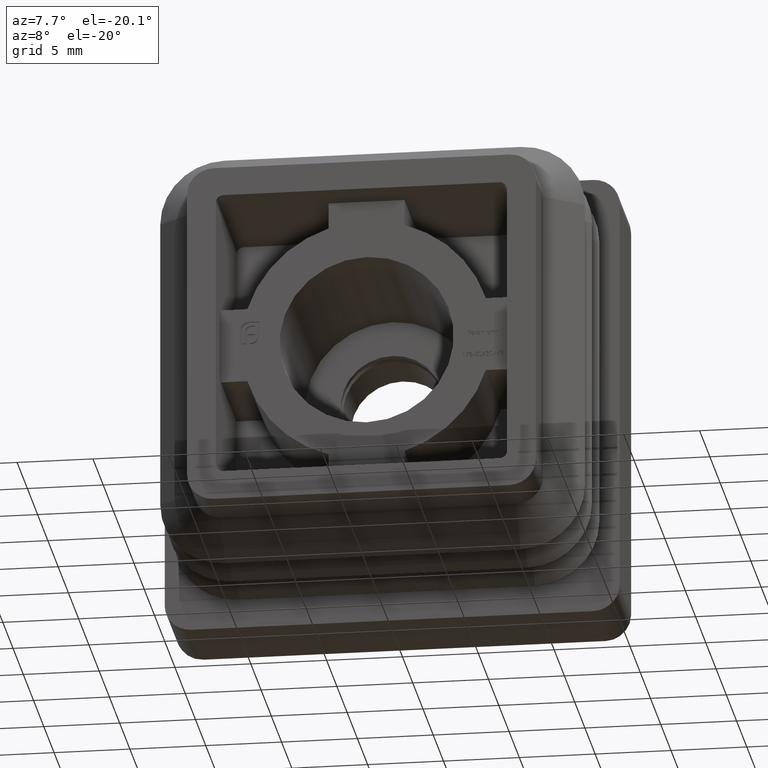
[diagram: clean part render]
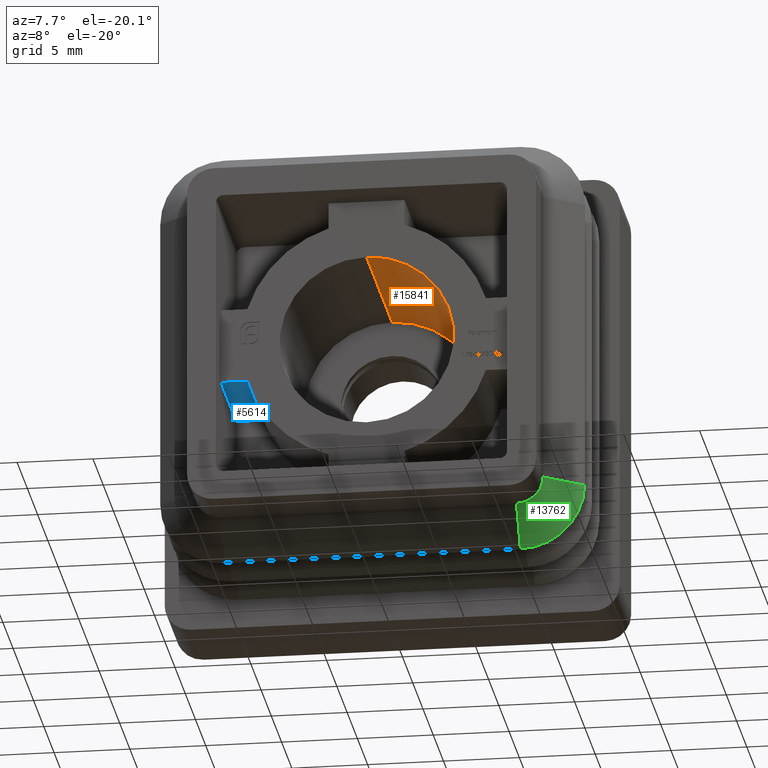
[diagram: same view with three faces highlighted in distinct colors, each labeled with its STEP entity id]
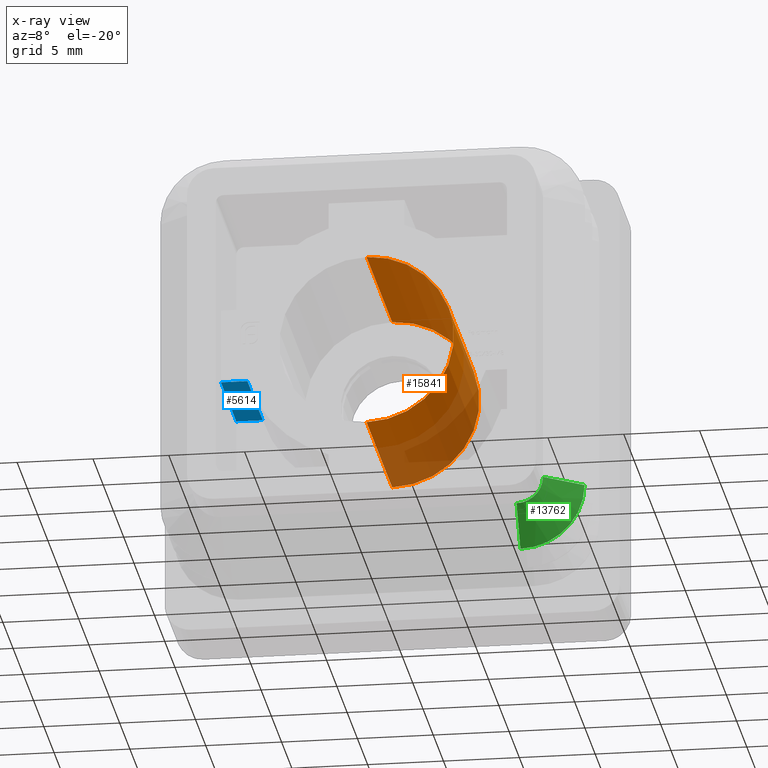
[diagram: x-ray of the same camera — body ghosted, the three highlighted faces saturated]
A machine part, auxiliary view with three faces highlighted in distinct colors.
The next image is the same camera in x-ray (body ghosted, the three faces saturated) — at least one of them is partly hidden behind the body in this view.
Their STEP definitions:

[orange] entity #15841 — the highlighted cylindrical surface (partial cylindrical patch) has radius 5.75 mm, axis along (-0, -1, -0).
#100 = FACE_OUTER_BOUND ( 'NONE', #12128, .T. ) ;
#1231 = CARTESIAN_POINT ( 'NONE',  ( 0.000000000000000000, 0.000000000000000000, 0.000000000000000000 ) ) ;
#3198 = LINE ( 'NONE', #19271, #20462 ) ;
#3591 = ORIENTED_EDGE ( 'NONE', *, *, #21528, .F. ) ;
#4337 = VERTEX_POINT ( 'NONE', #13723 ) ;
#4344 = CARTESIAN_POINT ( 'NONE',  ( 0.000000000000000000, 0.000000000000000000, -5.750000000000000000 ) ) ;
#4920 = VERTEX_POINT ( 'NONE', #4344 ) ;
#5213 = CARTESIAN_POINT ( 'NONE',  ( 0.000000000000000000, -12.49999999999999645, -5.750000000000000000 ) ) ;
#5599 = CARTESIAN_POINT ( 'NONE',  ( 0.000000000000000000, 0.000000000000000000, -5.750000000000000000 ) ) ;
#6272 = AXIS2_PLACEMENT_3D ( 'NONE', #22048, #16597, #7975 ) ;
#6633 = CARTESIAN_POINT ( 'NONE',  ( 0.000000000000000000, -12.49999999999999645, 0.000000000000000000 ) ) ;
#7251 = CIRCLE ( 'NONE', #6272, 5.750000000000000000 ) ;
#7975 = DIRECTION ( 'NONE',  ( 0.000000000000000000, 0.000000000000000000, -1.000000000000000000 ) ) ;
#8632 = VECTOR ( 'NONE', #8986, 1000.000000000000000 ) ;
#8679 = AXIS2_PLACEMENT_3D ( 'NONE', #1231, #11684, #9805 ) ;
#8716 = CIRCLE ( 'NONE', #9839, 5.750000000000000000 ) ;
#8986 = DIRECTION ( 'NONE',  ( -0.000000000000000000, -1.000000000000000000, -0.000000000000000000 ) ) ;
#9184 = VERTEX_POINT ( 'NONE', #5213 ) ;
#9805 = DIRECTION ( 'NONE',  ( 0.000000000000000000, 0.000000000000000000, -1.000000000000000000 ) ) ;
#9839 = AXIS2_PLACEMENT_3D ( 'NONE', #6633, #13833, #15481 ) ;
#10463 = DIRECTION ( 'NONE',  ( -0.000000000000000000, -1.000000000000000000, -0.000000000000000000 ) ) ;
#11684 = DIRECTION ( 'NONE',  ( -0.000000000000000000, -1.000000000000000000, -0.000000000000000000 ) ) ;
#11816 = ORIENTED_EDGE ( 'NONE', *, *, #19302, .F. ) ;
#12128 = EDGE_LOOP ( 'NONE', ( #11816, #3591, #21676, #13289 ) ) ;
#12980 = LINE ( 'NONE', #5599, #8632 ) ;
#13289 = ORIENTED_EDGE ( 'NONE', *, *, #15076, .T. ) ;
#13723 = CARTESIAN_POINT ( 'NONE',  ( 7.041719095097280880E-16, 0.000000000000000000, 5.750000000000000000 ) ) ;
#13833 = DIRECTION ( 'NONE',  ( 0.000000000000000000, -1.000000000000000000, 0.000000000000000000 ) ) ;
#15076 = EDGE_CURVE ( 'NONE', #9184, #22287, #8716, .T. ) ;
#15481 = DIRECTION ( 'NONE',  ( 0.000000000000000000, 0.000000000000000000, -1.000000000000000000 ) ) ;
#15841 = ADVANCED_FACE ( 'NONE', ( #100 ), #19771, .F. ) ;
#16597 = DIRECTION ( 'NONE',  ( 0.000000000000000000, -1.000000000000000000, 0.000000000000000000 ) ) ;
#17773 = CARTESIAN_POINT ( 'NONE',  ( 7.041719095097280880E-16, -12.49999999999999645, 5.750000000000000000 ) ) ;
#18392 = EDGE_CURVE ( 'NONE', #4920, #9184, #12980, .T. ) ;
#19271 = CARTESIAN_POINT ( 'NONE',  ( 7.041719095097280880E-16, 0.000000000000000000, 5.750000000000000000 ) ) ;
#19302 = EDGE_CURVE ( 'NONE', #4337, #22287, #3198, .T. ) ;
#19771 = CYLINDRICAL_SURFACE ( 'NONE', #8679, 5.750000000000000000 ) ;
#20462 = VECTOR ( 'NONE', #10463, 1000.000000000000000 ) ;
#21528 = EDGE_CURVE ( 'NONE', #4920, #4337, #7251, .T. ) ;
#21676 = ORIENTED_EDGE ( 'NONE', *, *, #18392, .T. ) ;
#22048 = CARTESIAN_POINT ( 'NONE',  ( 0.000000000000000000, 0.000000000000000000, 0.000000000000000000 ) ) ;
#22287 = VERTEX_POINT ( 'NONE', #17773 ) ;

[blue] entity #5614 — the highlighted planar face has unit normal (-0, 0, 1).
#327 = ORIENTED_EDGE ( 'NONE', *, *, #22219, .F. ) ;
#602 = VECTOR ( 'NONE', #20160, 1000.000000000000000 ) ;
#737 = EDGE_LOOP ( 'NONE', ( #327, #20872, #9946, #15612 ) ) ;
#1871 = EDGE_CURVE ( 'NONE', #10341, #20002, #21324, .T. ) ;
#2508 = VECTOR ( 'NONE', #10088, 1000.000000000000000 ) ;
#4631 = CARTESIAN_POINT ( 'NONE',  ( -7.862092596758194496, -4.999999999999999112, -2.499999999999999112 ) ) ;
#5179 = PLANE ( 'NONE',  #20736 ) ;
#5307 = VERTEX_POINT ( 'NONE', #9624 ) ;
#5614 = ADVANCED_FACE ( 'NONE', ( #14826 ), #5179, .F. ) ;
#7071 = LINE ( 'NONE', #18368, #17897 ) ;
#8706 = CARTESIAN_POINT ( 'NONE',  ( -9.600000000000003197, -42.15290039756342111, -2.500000000000000000 ) ) ;
#9624 = CARTESIAN_POINT ( 'NONE',  ( -7.862092596758194496, -12.49999999999999645, -2.499999999999999112 ) ) ;
#9946 = ORIENTED_EDGE ( 'NONE', *, *, #15871, .T. ) ;
#10088 = DIRECTION ( 'NONE',  ( 1.000000000000000000, 0.000000000000000000, 0.000000000000000000 ) ) ;
#10341 = VERTEX_POINT ( 'NONE', #22198 ) ;
#11273 = CARTESIAN_POINT ( 'NONE',  ( -9.600000000000003197, -42.15290039756342111, -2.500000000000000000 ) ) ;
#12494 = CARTESIAN_POINT ( 'NONE',  ( -9.600000000000003197, -12.49999999999999645, -2.500000000000000000 ) ) ;
#13186 = VECTOR ( 'NONE', #19175, 1000.000000000000000 ) ;
#13879 = LINE ( 'NONE', #15261, #2508 ) ;
#14826 = FACE_OUTER_BOUND ( 'NONE', #737, .T. ) ;
#15261 = CARTESIAN_POINT ( 'NONE',  ( -9.600000000000003197, -4.999999999999999112, -2.500000000000000000 ) ) ;
#15265 = CARTESIAN_POINT ( 'NONE',  ( -9.600000000000003197, -4.999999999999999112, -2.500000000000000000 ) ) ;
#15612 = ORIENTED_EDGE ( 'NONE', *, *, #16359, .F. ) ;
#15871 = EDGE_CURVE ( 'NONE', #20002, #18167, #13879, .T. ) ;
#16359 = EDGE_CURVE ( 'NONE', #5307, #18167, #7071, .T. ) ;
#17263 = DIRECTION ( 'NONE',  ( -0.000000000000000000, 0.000000000000000000, 1.000000000000000000 ) ) ;
#17897 = VECTOR ( 'NONE', #19867, 1000.000000000000000 ) ;
#18167 = VERTEX_POINT ( 'NONE', #4631 ) ;
#18368 = CARTESIAN_POINT ( 'NONE',  ( -7.862092596758194496, -42.15290039756342111, -2.499999999999999112 ) ) ;
#18973 = DIRECTION ( 'NONE',  ( 1.000000000000000000, 0.000000000000000000, 0.000000000000000000 ) ) ;
#19175 = DIRECTION ( 'NONE',  ( 1.000000000000000000, 0.000000000000000000, 0.000000000000000000 ) ) ;
#19867 = DIRECTION ( 'NONE',  ( -0.000000000000000000, 1.000000000000000000, -0.000000000000000000 ) ) ;
#20002 = VERTEX_POINT ( 'NONE', #15265 ) ;
#20147 = LINE ( 'NONE', #12494, #13186 ) ;
#20160 = DIRECTION ( 'NONE',  ( -0.000000000000000000, 1.000000000000000000, -0.000000000000000000 ) ) ;
#20736 = AXIS2_PLACEMENT_3D ( 'NONE', #8706, #17263, #18973 ) ;
#20872 = ORIENTED_EDGE ( 'NONE', *, *, #1871, .T. ) ;
#21324 = LINE ( 'NONE', #11273, #602 ) ;
#22198 = CARTESIAN_POINT ( 'NONE',  ( -9.600000000000003197, -12.49999999999999645, -2.500000000000000000 ) ) ;
#22219 = EDGE_CURVE ( 'NONE', #10341, #5307, #20147, .T. ) ;

[green] entity #13762 — the highlighted conical surface has half-angle 52.398 deg.
#845 = EDGE_CURVE ( 'NONE', #8407, #2351, #16534, .T. ) ;
#1596 = CIRCLE ( 'NONE', #18700, 4.230508639264420445 ) ;
#2121 = CARTESIAN_POINT ( 'NONE',  ( 9.749999999999998224, -9.589613418562887404, -13.98050863926441778 ) ) ;
#2351 = VERTEX_POINT ( 'NONE', #8586 ) ;
#3024 = EDGE_LOOP ( 'NONE', ( #22018, #16469, #10434, #9441 ) ) ;
#3216 = CARTESIAN_POINT ( 'NONE',  ( 13.98050863926441956, -9.589613418562887404, -9.750000000000005329 ) ) ;
#4348 = DIRECTION ( 'NONE',  ( -0.000000000000000000, -1.000000000000000000, -0.000000000000000000 ) ) ;
#4448 = DIRECTION ( 'NONE',  ( -1.409606710661252293E-16, 0.6101727852867564472, -0.7922683712577460735 ) ) ;
#4579 = CONICAL_SURFACE ( 'NONE', #5349, 1.749999999999998002, 0.9145176648399819808 ) ;
#5109 = DIRECTION ( 'NONE',  ( 0.7922683712577460735, 0.6101727852867564472, 0.000000000000000000 ) ) ;
#5198 = DIRECTION ( 'NONE',  ( 0.000000000000000000, 0.000000000000000000, 1.000000000000000000 ) ) ;
#5349 = AXIS2_PLACEMENT_3D ( 'NONE', #6935, #18842, #5198 ) ;
#6020 = CARTESIAN_POINT ( 'NONE',  ( 9.750000000000000000, -11.50000000000000000, -9.749999999999998224 ) ) ;
#6935 = CARTESIAN_POINT ( 'NONE',  ( 9.750000000000000000, -11.50000000000000000, -9.749999999999998224 ) ) ;
#7943 = CARTESIAN_POINT ( 'NONE',  ( 9.750000000000000000, -9.589613418562887404, -9.749999999999998224 ) ) ;
#8407 = VERTEX_POINT ( 'NONE', #12667 ) ;
#8586 = CARTESIAN_POINT ( 'NONE',  ( 13.98050863926441956, -9.589613418562887404, -9.750000000000005329 ) ) ;
#9038 = CARTESIAN_POINT ( 'NONE',  ( 9.749999999999998224, -11.49999999999999822, -11.49999999999999822 ) ) ;
#9441 = ORIENTED_EDGE ( 'NONE', *, *, #10107, .T. ) ;
#9608 = DIRECTION ( 'NONE',  ( -8.201016113648368092E-16, 0.000000000000000000, -1.000000000000000000 ) ) ;
#10107 = EDGE_CURVE ( 'NONE', #18849, #16270, #16310, .T. ) ;
#10434 = ORIENTED_EDGE ( 'NONE', *, *, #14195, .F. ) ;
#10804 = FACE_OUTER_BOUND ( 'NONE', #3024, .T. ) ;
#12667 = CARTESIAN_POINT ( 'NONE',  ( 11.50000000000000000, -11.49999999999999822, -9.749999999999998224 ) ) ;
#13477 = AXIS2_PLACEMENT_3D ( 'NONE', #6020, #4348, #14509 ) ;
#13762 = ADVANCED_FACE ( 'NONE', ( #10804 ), #4579, .T. ) ;
#14195 = EDGE_CURVE ( 'NONE', #18849, #8407, #20209, .T. ) ;
#14509 = DIRECTION ( 'NONE',  ( -9.912705577010338368E-16, 0.000000000000000000, -1.000000000000000000 ) ) ;
#16270 = VERTEX_POINT ( 'NONE', #19266 ) ;
#16310 = LINE ( 'NONE', #2121, #17402 ) ;
#16469 = ORIENTED_EDGE ( 'NONE', *, *, #845, .F. ) ;
#16534 = LINE ( 'NONE', #3216, #20833 ) ;
#17402 = VECTOR ( 'NONE', #4448, 1000.000000000000114 ) ;
#18700 = AXIS2_PLACEMENT_3D ( 'NONE', #7943, #19872, #9608 ) ;
#18842 = DIRECTION ( 'NONE',  ( 0.000000000000000000, 1.000000000000000000, 0.000000000000000000 ) ) ;
#18849 = VERTEX_POINT ( 'NONE', #9038 ) ;
#19266 = CARTESIAN_POINT ( 'NONE',  ( 9.749999999999998224, -9.589613418562887404, -13.98050863926441778 ) ) ;
#19444 = EDGE_CURVE ( 'NONE', #16270, #2351, #1596, .T. ) ;
#19872 = DIRECTION ( 'NONE',  ( -0.000000000000000000, -1.000000000000000000, -0.000000000000000000 ) ) ;
#20209 = CIRCLE ( 'NONE', #13477, 1.749999999999998002 ) ;
#20833 = VECTOR ( 'NONE', #5109, 1000.000000000000114 ) ;
#22018 = ORIENTED_EDGE ( 'NONE', *, *, #19444, .T. ) ;